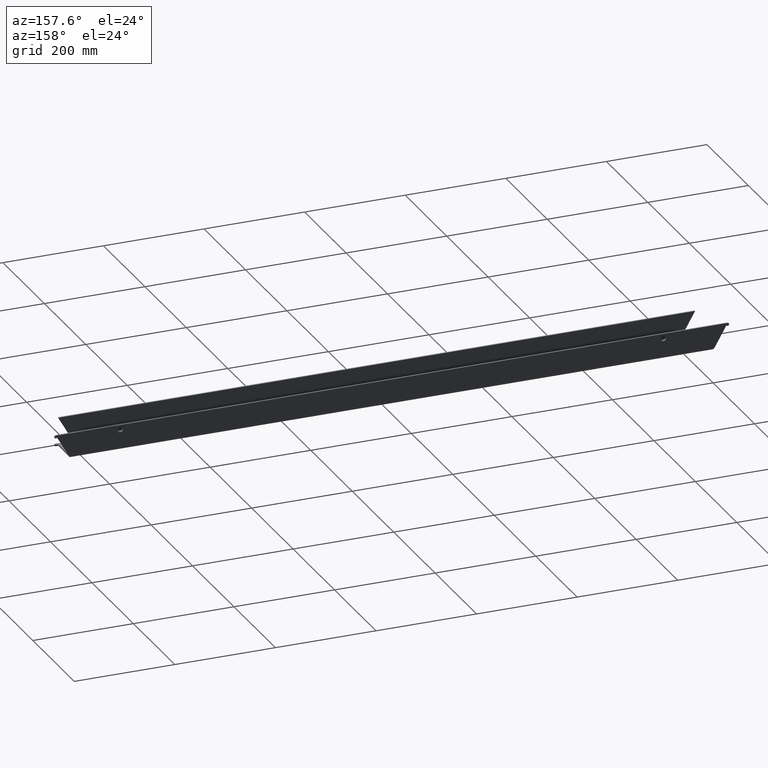
[diagram: clean part render]
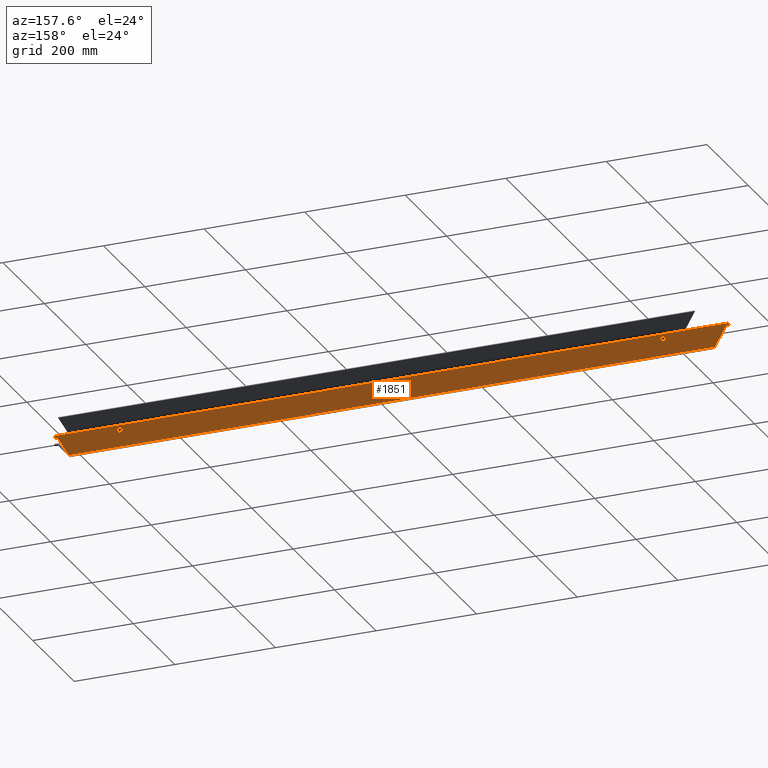
[diagram: same view with one face highlighted and labeled with its STEP entity id]
A machine part, auxiliary view. The second image highlights one B-rep face of the part: STEP entity #1851.
In plain terms, the highlighted planar face has unit normal (0, -1, 0).
Its self-contained STEP definition (entity closure, byte-faithful):
#5 = VERTEX_POINT ( 'NONE', #947 ) ;
#18 = CARTESIAN_POINT ( 'NONE',  ( -670.6990216965074296, -1093.805262667903662, -1213.366025403783851 ) ) ;
#28 = CARTESIAN_POINT ( 'NONE',  ( -668.3329962927228962, -1093.805262667903435, -1216.464101615137224 ) ) ;
#30 = DIRECTION ( 'NONE',  ( 0.000000000000000000, 0.000000000000000000, -1.000000000000000000 ) ) ;
#33 = VERTEX_POINT ( 'NONE', #1384 ) ;
#42 = FACE_OUTER_BOUND ( 'NONE', #1559, .T. ) ;
#78 = EDGE_LOOP ( 'NONE', ( #1463, #2555 ) ) ;
#82 = CARTESIAN_POINT ( 'NONE',  ( -674.6631233116455633, -1093.805262667903435, -1214.499999999999773 ) ) ;
#101 = EDGE_CURVE ( 'NONE', #2302, #215, #2054, .T. ) ;
#140 = CARTESIAN_POINT ( 'NONE',  ( 670.3329962927230099, -1093.805262667903662, -1211.999999999999545 ) ) ;
#165 = CARTESIAN_POINT ( 'NONE',  ( 539.9999999999997726, -1093.805262667903662, -1219.999999999999545 ) ) ;
#167 = EDGE_CURVE ( 'NONE', #1680, #1538, #326, .T. ) ;
#175 = ORIENTED_EDGE ( 'NONE', *, *, #2111, .T. ) ;
#215 = VERTEX_POINT ( 'NONE', #28 ) ;
#233 = ORIENTED_EDGE ( 'NONE', *, *, #1659, .F. ) ;
#234 = AXIS2_PLACEMENT_3D ( 'NONE', #1684, #1402, #1830 ) ;
#262 = CARTESIAN_POINT ( 'NONE',  ( 669.1990216965073159, -1093.805262667903662, -1215.964101615137224 ) ) ;
#281 = CIRCLE ( 'NONE', #2481, 0.9999999999998898659 ) ;
#324 = DIRECTION ( 'NONE',  ( 0.000000000000000000, -1.000000000000000000, 0.000000000000000000 ) ) ;
#326 = CIRCLE ( 'NONE', #234, 0.9999999999998898659 ) ;
#338 = ORIENTED_EDGE ( 'NONE', *, *, #167, .T. ) ;
#339 = EDGE_CURVE ( 'NONE', #1056, #1538, #719, .T. ) ;
#350 = VERTEX_POINT ( 'NONE', #1511 ) ;
#352 = CARTESIAN_POINT ( 'NONE',  ( 539.9999999999997726, -1093.805262667903662, -1225.249999999546844 ) ) ;
#380 = ORIENTED_EDGE ( 'NONE', *, *, #339, .F. ) ;
#382 = CARTESIAN_POINT ( 'NONE',  ( 539.9999999999997726, -1093.805262667903662, -1219.999999999999545 ) ) ;
#385 = ORIENTED_EDGE ( 'NONE', *, *, #1399, .T. ) ;
#396 = CARTESIAN_POINT ( 'NONE',  ( -668.3329962927228962, -1093.805262667903435, -1215.464101615137224 ) ) ;
#426 = VERTEX_POINT ( 'NONE', #352 ) ;
#430 = DIRECTION ( 'NONE',  ( 0.000000000000000000, 0.000000000000000000, -1.000000000000000000 ) ) ;
#435 = EDGE_LOOP ( 'NONE', ( #1640, #175 ) ) ;
#460 = VERTEX_POINT ( 'NONE', #1215 ) ;
#489 = EDGE_CURVE ( 'NONE', #215, #350, #281, .T. ) ;
#494 = VERTEX_POINT ( 'NONE', #1474 ) ;
#516 = CARTESIAN_POINT ( 'NONE',  ( 667.7349200813698644, -1093.805262667903662, -1210.499999999999545 ) ) ;
#519 = AXIS2_PLACEMENT_3D ( 'NONE', #2390, #1322, #1960 ) ;
#547 = EDGE_CURVE ( 'NONE', #33, #2584, #775, .T. ) ;
#555 = VECTOR ( 'NONE', #2410, 1000.000000000000114 ) ;
#562 = DIRECTION ( 'NONE',  ( 0.000000000000000000, -1.000000000000000000, 0.000000000000000000 ) ) ;
#563 = AXIS2_PLACEMENT_3D ( 'NONE', #1702, #1889, #30 ) ;
#577 = CARTESIAN_POINT ( 'NONE',  ( 642.3315082370262417, -1093.805262667903662, -1254.499999999999318 ) ) ;
#606 = VERTEX_POINT ( 'NONE', #2316 ) ;
#609 = DIRECTION ( 'NONE',  ( 0.000000000000000000, 0.000000000000000000, -1.000000000000000000 ) ) ;
#613 = CIRCLE ( 'NONE', #2000, 5.249999999547227958 ) ;
#645 = VECTOR ( 'NONE', #1535, 1000.000000000000114 ) ;
#654 = EDGE_CURVE ( 'NONE', #460, #925, #2371, .T. ) ;
#664 = FACE_BOUND ( 'NONE', #78, .T. ) ;
#698 = CIRCLE ( 'NONE', #1907, 5.249999999547227958 ) ;
#699 = CARTESIAN_POINT ( 'NONE',  ( -672.1631233116455633, -1093.805262667903435, -1218.830127018921985 ) ) ;
#719 = LINE ( 'NONE', #1927, #2361 ) ;
#743 = CIRCLE ( 'NONE', #1523, 5.249999999547227958 ) ;
#771 = VERTEX_POINT ( 'NONE', #2226 ) ;
#775 = CIRCLE ( 'NONE', #2064, 0.9999999999998898659 ) ;
#779 = DIRECTION ( 'NONE',  ( -1.000000000000000000, 0.000000000000000000, -0.000000000000000000 ) ) ;
#790 = EDGE_CURVE ( 'NONE', #2584, #771, #1822, .T. ) ;
#815 = ORIENTED_EDGE ( 'NONE', *, *, #1458, .F. ) ;
#828 = VECTOR ( 'NONE', #1294, 1000.000000000000000 ) ;
#916 = DIRECTION ( 'NONE',  ( 0.8660254037844380415, 0.000000000000000000, 0.5000000000000009992 ) ) ;
#925 = VERTEX_POINT ( 'NONE', #1016 ) ;
#931 = EDGE_CURVE ( 'NONE', #1680, #1970, #2499, .T. ) ;
#947 = CARTESIAN_POINT ( 'NONE',  ( 539.9999999999997726, -1093.805262667903662, -1214.750000000452246 ) ) ;
#1016 = CARTESIAN_POINT ( 'NONE',  ( -667.7349200813696370, -1093.805262667903662, -1210.499999999999545 ) ) ;
#1020 = DIRECTION ( 'NONE',  ( 0.5000000000000011102, 0.000000000000000000, 0.8660254037844379305 ) ) ;
#1025 = CARTESIAN_POINT ( 'NONE',  ( -206.4074241353259822, -1093.805262667903662, -2009.542661907070169 ) ) ;
#1039 = CARTESIAN_POINT ( 'NONE',  ( 1090.972523324353915, -1093.805262667903662, -1210.499999999999545 ) ) ;
#1046 = VECTOR ( 'NONE', #779, 1000.000000000000000 ) ;
#1052 = DIRECTION ( 'NONE',  ( 0.000000000000000000, 0.000000000000000000, -1.000000000000000000 ) ) ;
#1053 = CARTESIAN_POINT ( 'NONE',  ( 668.3329962927228962, -1093.805262667903435, -1215.464101615137224 ) ) ;
#1056 = VERTEX_POINT ( 'NONE', #262 ) ;
#1066 = PLANE ( 'NONE',  #563 ) ;
#1104 = ORIENTED_EDGE ( 'NONE', *, *, #489, .F. ) ;
#1140 = LINE ( 'NONE', #699, #645 ) ;
#1167 = CARTESIAN_POINT ( 'NONE',  ( -668.3329962927228962, -1093.805262667903435, -1215.464101615137224 ) ) ;
#1215 = CARTESIAN_POINT ( 'NONE',  ( -670.3329962927231236, -1093.805262667903662, -1211.999999999999545 ) ) ;
#1222 = DIRECTION ( 'NONE',  ( 0.000000000000000000, 0.000000000000000000, -1.000000000000000000 ) ) ;
#1243 = LINE ( 'NONE', #1025, #1527 ) ;
#1255 = ORIENTED_EDGE ( 'NONE', *, *, #101, .F. ) ;
#1294 = DIRECTION ( 'NONE',  ( -1.000000000000000000, -0.000000000000000000, -0.000000000000000000 ) ) ;
#1297 = DIRECTION ( 'NONE',  ( -0.5000000000000014433, 0.000000000000000000, 0.8660254037844378194 ) ) ;
#1300 = ORIENTED_EDGE ( 'NONE', *, *, #790, .T. ) ;
#1322 = DIRECTION ( 'NONE',  ( 0.000000000000000000, -1.000000000000000000, 0.000000000000000000 ) ) ;
#1375 = LINE ( 'NONE', #1606, #1046 ) ;
#1376 = VERTEX_POINT ( 'NONE', #1891 ) ;
#1384 = CARTESIAN_POINT ( 'NONE',  ( 668.3329962927228962, -1093.805262667903435, -1216.464101615137224 ) ) ;
#1399 = EDGE_CURVE ( 'NONE', #2302, #1430, #2492, .T. ) ;
#1400 = AXIS2_PLACEMENT_3D ( 'NONE', #1858, #2071, #2059 ) ;
#1402 = DIRECTION ( 'NONE',  ( -0.000000000000000000, 1.000000000000000000, -0.000000000000000000 ) ) ;
#1430 = VERTEX_POINT ( 'NONE', #18 ) ;
#1443 = CARTESIAN_POINT ( 'NONE',  ( 667.8329962927230099, -1093.805262667903662, -1216.330127018921758 ) ) ;
#1457 = AXIS2_PLACEMENT_3D ( 'NONE', #1167, #562, #1052 ) ;
#1458 = EDGE_CURVE ( 'NONE', #350, #2437, #1140, .T. ) ;
#1463 = ORIENTED_EDGE ( 'NONE', *, *, #1507, .T. ) ;
#1465 = CARTESIAN_POINT ( 'NONE',  ( -540.0000000000002274, -1093.805262667903662, -1219.999999999999545 ) ) ;
#1474 = CARTESIAN_POINT ( 'NONE',  ( -642.3315082370257869, -1093.805262667903662, -1254.499999999999545 ) ) ;
#1475 = CARTESIAN_POINT ( 'NONE',  ( -669.8329962927230099, -1093.805262667903435, -1212.866025403784079 ) ) ;
#1507 = EDGE_CURVE ( 'NONE', #1376, #606, #1690, .T. ) ;
#1511 = CARTESIAN_POINT ( 'NONE',  ( -667.8329962927230099, -1093.805262667903662, -1216.330127018921758 ) ) ;
#1523 = AXIS2_PLACEMENT_3D ( 'NONE', #382, #2402, #1222 ) ;
#1527 = VECTOR ( 'NONE', #2047, 1000.000000000000114 ) ;
#1528 = DIRECTION ( 'NONE',  ( 0.5000000000000014433, 0.000000000000000000, 0.8660254037844378194 ) ) ;
#1535 = DIRECTION ( 'NONE',  ( 0.8660254037844380415, 0.000000000000000000, 0.5000000000000009992 ) ) ;
#1538 = VERTEX_POINT ( 'NONE', #1547 ) ;
#1547 = CARTESIAN_POINT ( 'NONE',  ( 670.6990216965074296, -1093.805262667903662, -1213.366025403783851 ) ) ;
#1559 = EDGE_LOOP ( 'NONE', ( #233, #1949, #1836, #815, #1104, #1255, #385, #2469, #2223, #2337, #2596, #338, #380, #1771, #2048, #1300 ) ) ;
#1568 = VERTEX_POINT ( 'NONE', #577 ) ;
#1606 = CARTESIAN_POINT ( 'NONE',  ( -1284.683459398313516, -1093.805262667903662, -1254.499999999999318 ) ) ;
#1640 = ORIENTED_EDGE ( 'NONE', *, *, #1648, .T. ) ;
#1648 = EDGE_CURVE ( 'NONE', #426, #5, #743, .T. ) ;
#1659 = EDGE_CURVE ( 'NONE', #1568, #771, #2442, .T. ) ;
#1680 = VERTEX_POINT ( 'NONE', #140 ) ;
#1684 = CARTESIAN_POINT ( 'NONE',  ( 669.8329962927230099, -1093.805262667903435, -1212.866025403784079 ) ) ;
#1690 = CIRCLE ( 'NONE', #519, 5.249999999547227958 ) ;
#1702 = CARTESIAN_POINT ( 'NONE',  ( 1090.972523324353915, -1093.805262667903662, -1260.499999999999545 ) ) ;
#1726 = EDGE_CURVE ( 'NONE', #1970, #925, #2517, .T. ) ;
#1771 = ORIENTED_EDGE ( 'NONE', *, *, #2248, .T. ) ;
#1822 = LINE ( 'NONE', #2612, #555 ) ;
#1830 = DIRECTION ( 'NONE',  ( 0.000000000000000000, 0.000000000000000000, 1.000000000000000000 ) ) ;
#1836 = ORIENTED_EDGE ( 'NONE', *, *, #2147, .T. ) ;
#1843 = EDGE_CURVE ( 'NONE', #460, #1430, #1861, .T. ) ;
#1849 = DIRECTION ( 'NONE',  ( 0.000000000000000000, -1.000000000000000000, 0.000000000000000000 ) ) ;
#1851 = ADVANCED_FACE ( 'NONE', ( #664, #1901, #42 ), #1066, .F. ) ;
#1858 = CARTESIAN_POINT ( 'NONE',  ( 668.3329962927228962, -1093.805262667903435, -1215.464101615137224 ) ) ;
#1861 = CIRCLE ( 'NONE', #2205, 0.9999999999998898659 ) ;
#1889 = DIRECTION ( 'NONE',  ( 0.000000000000000000, -1.000000000000000000, 0.000000000000000000 ) ) ;
#1891 = CARTESIAN_POINT ( 'NONE',  ( -540.0000000000002274, -1093.805262667903662, -1225.249999999546844 ) ) ;
#1901 = FACE_BOUND ( 'NONE', #435, .T. ) ;
#1907 = AXIS2_PLACEMENT_3D ( 'NONE', #165, #324, #2626 ) ;
#1927 = CARTESIAN_POINT ( 'NONE',  ( 671.1990216965073159, -1093.805262667903435, -1212.499999999999545 ) ) ;
#1949 = ORIENTED_EDGE ( 'NONE', *, *, #2478, .T. ) ;
#1960 = DIRECTION ( 'NONE',  ( 0.000000000000000000, 0.000000000000000000, -1.000000000000000000 ) ) ;
#1970 = VERTEX_POINT ( 'NONE', #516 ) ;
#2000 = AXIS2_PLACEMENT_3D ( 'NONE', #1465, #2044, #609 ) ;
#2044 = DIRECTION ( 'NONE',  ( 0.000000000000000000, -1.000000000000000000, 0.000000000000000000 ) ) ;
#2047 = DIRECTION ( 'NONE',  ( -0.5000000000000009992, 0.000000000000000000, 0.8660254037844380415 ) ) ;
#2048 = ORIENTED_EDGE ( 'NONE', *, *, #547, .T. ) ;
#2050 = DIRECTION ( 'NONE',  ( -0.000000000000000000, 1.000000000000000000, -0.000000000000000000 ) ) ;
#2054 = CIRCLE ( 'NONE', #1457, 0.9999999999998898659 ) ;
#2059 = DIRECTION ( 'NONE',  ( 0.000000000000000000, 0.000000000000000000, 1.000000000000000000 ) ) ;
#2064 = AXIS2_PLACEMENT_3D ( 'NONE', #1053, #2050, #2667 ) ;
#2071 = DIRECTION ( 'NONE',  ( -0.000000000000000000, 1.000000000000000000, -0.000000000000000000 ) ) ;
#2111 = EDGE_CURVE ( 'NONE', #5, #426, #698, .T. ) ;
#2136 = CARTESIAN_POINT ( 'NONE',  ( -669.1990216965073159, -1093.805262667903662, -1215.964101615137224 ) ) ;
#2147 = EDGE_CURVE ( 'NONE', #494, #2437, #1243, .T. ) ;
#2158 = VECTOR ( 'NONE', #1297, 1000.000000000000114 ) ;
#2205 = AXIS2_PLACEMENT_3D ( 'NONE', #1475, #2290, #430 ) ;
#2223 = ORIENTED_EDGE ( 'NONE', *, *, #654, .T. ) ;
#2226 = CARTESIAN_POINT ( 'NONE',  ( 665.2349200813698644, -1093.805262667903662, -1214.830127018921758 ) ) ;
#2242 = CARTESIAN_POINT ( 'NONE',  ( 751.8936857975053272, -1093.805262667903662, -1064.732741877367744 ) ) ;
#2248 = EDGE_CURVE ( 'NONE', #1056, #33, #2548, .T. ) ;
#2283 = VECTOR ( 'NONE', #2450, 1000.000000000000114 ) ;
#2290 = DIRECTION ( 'NONE',  ( 0.000000000000000000, -1.000000000000000000, 0.000000000000000000 ) ) ;
#2302 = VERTEX_POINT ( 'NONE', #2136 ) ;
#2316 = CARTESIAN_POINT ( 'NONE',  ( -540.0000000000002274, -1093.805262667903662, -1214.750000000452246 ) ) ;
#2318 = CARTESIAN_POINT ( 'NONE',  ( -671.1990216965073159, -1093.805262667903435, -1212.499999999999545 ) ) ;
#2334 = VECTOR ( 'NONE', #1020, 1000.000000000000114 ) ;
#2337 = ORIENTED_EDGE ( 'NONE', *, *, #1726, .F. ) ;
#2361 = VECTOR ( 'NONE', #1528, 1000.000000000000114 ) ;
#2371 = LINE ( 'NONE', #82, #2414 ) ;
#2390 = CARTESIAN_POINT ( 'NONE',  ( -540.0000000000002274, -1093.805262667903662, -1219.999999999999545 ) ) ;
#2402 = DIRECTION ( 'NONE',  ( 0.000000000000000000, -1.000000000000000000, 0.000000000000000000 ) ) ;
#2410 = DIRECTION ( 'NONE',  ( -0.8660254037844380415, 0.000000000000000000, 0.5000000000000009992 ) ) ;
#2414 = VECTOR ( 'NONE', #916, 1000.000000000000114 ) ;
#2437 = VERTEX_POINT ( 'NONE', #2621 ) ;
#2442 = LINE ( 'NONE', #2242, #2334 ) ;
#2450 = DIRECTION ( 'NONE',  ( -0.8660254037844380415, 0.000000000000000000, 0.5000000000000009992 ) ) ;
#2469 = ORIENTED_EDGE ( 'NONE', *, *, #1843, .F. ) ;
#2478 = EDGE_CURVE ( 'NONE', #1568, #494, #1375, .T. ) ;
#2481 = AXIS2_PLACEMENT_3D ( 'NONE', #396, #1849, #2503 ) ;
#2484 = CARTESIAN_POINT ( 'NONE',  ( 674.6631233116455633, -1093.805262667903435, -1214.499999999999773 ) ) ;
#2492 = LINE ( 'NONE', #2318, #2158 ) ;
#2499 = LINE ( 'NONE', #2484, #2283 ) ;
#2503 = DIRECTION ( 'NONE',  ( 0.000000000000000000, 0.000000000000000000, -1.000000000000000000 ) ) ;
#2517 = LINE ( 'NONE', #1039, #828 ) ;
#2548 = CIRCLE ( 'NONE', #1400, 0.9999999999998898659 ) ;
#2555 = ORIENTED_EDGE ( 'NONE', *, *, #2558, .T. ) ;
#2558 = EDGE_CURVE ( 'NONE', #606, #1376, #613, .T. ) ;
#2584 = VERTEX_POINT ( 'NONE', #1443 ) ;
#2596 = ORIENTED_EDGE ( 'NONE', *, *, #931, .F. ) ;
#2612 = CARTESIAN_POINT ( 'NONE',  ( 672.1631233116455633, -1093.805262667903435, -1218.830127018921985 ) ) ;
#2621 = CARTESIAN_POINT ( 'NONE',  ( -665.2349200813694097, -1093.805262667903662, -1214.830127018921758 ) ) ;
#2626 = DIRECTION ( 'NONE',  ( 0.000000000000000000, 0.000000000000000000, -1.000000000000000000 ) ) ;
#2667 = DIRECTION ( 'NONE',  ( 0.000000000000000000, 0.000000000000000000, 1.000000000000000000 ) ) ;